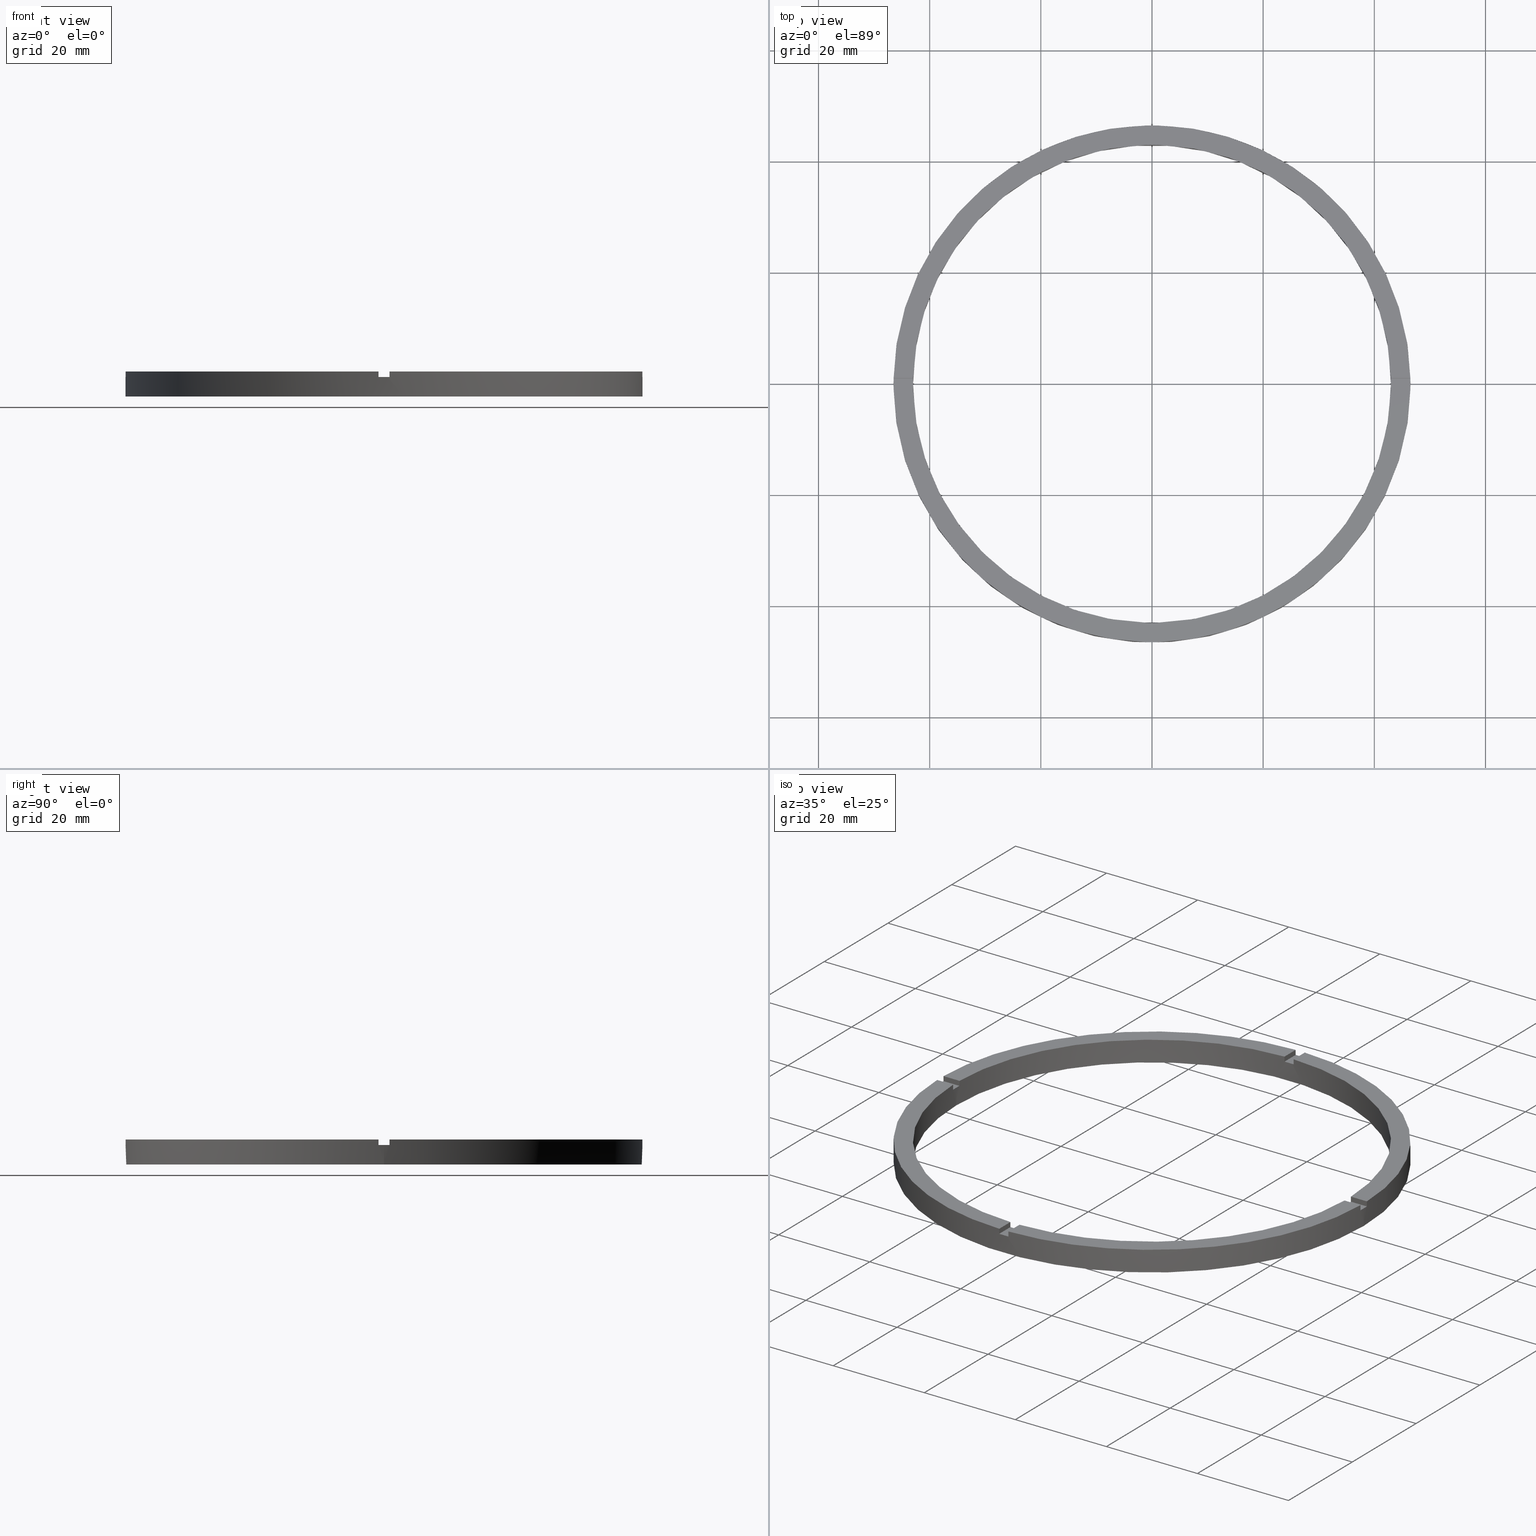
[diagram: canonical four-view strip — front | top / right | iso, engineering-drawing reading convention]
A machine part, canonical four-view strip (front | top / right | iso — engineering-drawing reading convention). The complete STEP part file that produces these views, byte-faithful:
ISO-10303-21;
HEADER;
FILE_DESCRIPTION (( 'STEP AP203' ),
    '1' );
FILE_NAME ('514190.step',
    '2024-12-26T02:46:22',
    ( 'MSI' ),
    ( '' ),
    'SwSTEP 2.0',
    'SolidWorks 2020',
    '' );
FILE_SCHEMA (( 'CONFIG_CONTROL_DESIGN' ));
ENDSEC;

DATA;
#1 = DIRECTION ( 'NONE',  ( -1.301042606982605074E-16, 1.000000000000000000, 0.000000000000000000 ) ) ;
#2 = FACE_OUTER_BOUND ( 'NONE', #13, .T. ) ;
#3 = PRODUCT_DEFINITION_FORMATION_WITH_SPECIFIED_SOURCE ( '�κ�', '', #372, .NOT_KNOWN. ) ;
#4 = EDGE_CURVE ( 'NONE', #716, #425, #410, .T. ) ;
#5 = VECTOR ( 'NONE', #100, 1000.000000000000000 ) ;
#6 = LINE ( 'NONE', #756, #260 ) ;
#7 = DIRECTION ( 'NONE',  ( 1.000000000000000000, 0.000000000000000000, 0.000000000000000000 ) ) ;
#8 = EDGE_LOOP ( 'NONE', ( #530, #523, #490, #443 ) ) ;
#9 = EDGE_LOOP ( 'NONE', ( #237, #162, #688, #698, #454, #176 ) ) ;
#10 = DIRECTION ( 'NONE',  ( -0.000000000000000000, -0.000000000000000000, -1.000000000000000000 ) ) ;
#11 = EDGE_LOOP ( 'NONE', ( #199, #195, #457, #155 ) ) ;
#12 = AXIS2_PLACEMENT_3D ( 'NONE', #37, #369, #257 ) ;
#13 = EDGE_LOOP ( 'NONE', ( #434, #137, #448, #436, #212, #446 ) ) ;
#14 = DIRECTION ( 'NONE',  ( 1.000000000000000000, 0.000000000000000000, 0.000000000000000000 ) ) ;
#15 = APPROVAL_STATUS ( 'not_yet_approved' ) ;
#16 = AXIS2_PLACEMENT_3D ( 'NONE', #395, #108, #149 ) ;
#17 = SHAPE_DEFINITION_REPRESENTATION ( #215, #663 ) ;
#18 = ORIENTED_EDGE ( 'NONE', *, *, #152, .T. ) ;
#19 = PERSON_AND_ORGANIZATION ( #96, #39 ) ;
#20 = PLANE ( 'NONE',  #51 ) ;
#21 = CARTESIAN_POINT ( 'NONE',  ( 46.50000000000000000, 5.694607616035192278E-15, 3.499999999999999556 ) ) ;
#22 = DIRECTION ( 'NONE',  ( 1.000000000000000000, 0.000000000000000000, 0.000000000000000000 ) ) ;
#23 = DIRECTION ( 'NONE',  ( 0.000000000000000000, 0.000000000000000000, 1.000000000000000000 ) ) ;
#24 = LOCAL_TIME ( 10, 46, 22.00000000000000000, #280 ) ;
#25 = PERSON_AND_ORGANIZATION ( #96, #39 ) ;
#26 = APPROVAL_PERSON_ORGANIZATION ( #282, #44, #41 ) ;
#27 = DIRECTION ( 'NONE',  ( 0.000000000000000000, 0.000000000000000000, 1.000000000000000000 ) ) ;
#28 = PERSON_AND_ORGANIZATION ( #96, #39 ) ;
#29 = COORDINATED_UNIVERSAL_TIME_OFFSET ( 8, 0, .AHEAD. ) ;
#30 = AXIS2_PLACEMENT_3D ( 'NONE', #350, #646, #449 ) ;
#31 = DIRECTION ( 'NONE',  ( 1.000000000000000000, 0.000000000000000000, 0.000000000000000000 ) ) ;
#32 = EDGE_CURVE ( 'NONE', #129, #541, #146, .T. ) ;
#33 = APPROVAL_ROLE ( '' ) ;
#34 = CALENDAR_DATE ( 2024, 26, 12 ) ;
#35 = CARTESIAN_POINT ( 'NONE',  ( 0.000000000000000000, 0.000000000000000000, 4.500000000000000000 ) ) ;
#36 = CARTESIAN_POINT ( 'NONE',  ( -1.000000000000157652, -46.48924606831132422, 4.500000000000000000 ) ) ;
#37 = CARTESIAN_POINT ( 'NONE',  ( -36.50000000000018474, -1.000000000000028422, 3.499999999999999556 ) ) ;
#38 = EDGE_CURVE ( 'NONE', #779, #442, #148, .T. ) ;
#39 = ORGANIZATION ( 'δָ��', 'δָ��', '' ) ;
#40 = LOCAL_TIME ( 10, 46, 22.00000000000000000, #29 ) ;
#41 = APPROVAL_ROLE ( '' ) ;
#42 = CARTESIAN_POINT ( 'NONE',  ( -1.000000000000026423, 36.50000000000000000, 4.500000000000000000 ) ) ;
#43 = CARTESIAN_POINT ( 'NONE',  ( 0.000000000000000000, 0.000000000000000000, 3.499999999999999556 ) ) ;
#44 = APPROVAL ( #755, 'δָ��' ) ;
#45 = EDGE_CURVE ( 'NONE', #684, #274, #431, .T. ) ;
#46 = CARTESIAN_POINT ( 'NONE',  ( -1.000000000000026423, 42.98837052040935447, 3.499999999999999556 ) ) ;
#47 = DIRECTION ( 'NONE',  ( 0.000000000000000000, 0.000000000000000000, 1.000000000000000000 ) ) ;
#48 = DIRECTION ( 'NONE',  ( -0.000000000000000000, -0.000000000000000000, -1.000000000000000000 ) ) ;
#49 = DIRECTION ( 'NONE',  ( 1.000000000000000000, 0.000000000000000000, 0.000000000000000000 ) ) ;
#50 =( NAMED_UNIT ( * ) SI_UNIT ( $, .STERADIAN. ) SOLID_ANGLE_UNIT ( ) );
#51 = AXIS2_PLACEMENT_3D ( 'NONE', #655, #296, #1 ) ;
#52 = DIRECTION ( 'NONE',  ( 0.000000000000000000, 0.000000000000000000, 1.000000000000000000 ) ) ;
#53 = LOCAL_TIME ( 10, 46, 22.00000000000000000, #572 ) ;
#54 = CALENDAR_DATE ( 2024, 26, 12 ) ;
#55 = DIRECTION ( 'NONE',  ( -0.000000000000000000, -0.000000000000000000, -1.000000000000000000 ) ) ;
#56 = AXIS2_PLACEMENT_3D ( 'NONE', #66, #400, #482 ) ;
#57 = APPROVAL_PERSON_ORGANIZATION ( #573, #209, #700 ) ;
#58 = CALENDAR_DATE ( 2024, 26, 12 ) ;
#59 = AXIS2_PLACEMENT_3D ( 'NONE', #471, #203, #582 ) ;
#60 = ADVANCED_FACE ( 'NONE', ( #421 ), #20, .F. ) ;
#61 = DIRECTION ( 'NONE',  ( 0.000000000000000000, -0.000000000000000000, 1.000000000000000000 ) ) ;
#62 = FACE_OUTER_BOUND ( 'NONE', #477, .T. ) ;
#63 = EDGE_CURVE ( 'NONE', #521, #261, #174, .T. ) ;
#64 = CIRCLE ( 'NONE', #672, 46.50000000000000000 ) ;
#65 = FACE_OUTER_BOUND ( 'NONE', #465, .T. ) ;
#66 = CARTESIAN_POINT ( 'NONE',  ( 0.000000000000000000, 0.000000000000000000, 3.499999999999999556 ) ) ;
#67 = LINE ( 'NONE', #308, #323 ) ;
#68 = AXIS2_PLACEMENT_3D ( 'NONE', #83, #699, #27 ) ;
#69 = LINE ( 'NONE', #86, #71 ) ;
#70 = VECTOR ( 'NONE', #746, 1000.000000000000000 ) ;
#71 = VECTOR ( 'NONE', #75, 1000.000000000000000 ) ;
#72 = FACE_OUTER_BOUND ( 'NONE', #656, .T. ) ;
#73 = VECTOR ( 'NONE', #106, 1000.000000000000000 ) ;
#74 = CARTESIAN_POINT ( 'NONE',  ( 43.00000000000000000, 5.265981236333618470E-15, 4.500000000000000000 ) ) ;
#75 = DIRECTION ( 'NONE',  ( 1.000000000000000000, 1.951563910473907735E-16, -0.000000000000000000 ) ) ;
#76 = FACE_OUTER_BOUND ( 'NONE', #181, .T. ) ;
#77 = LINE ( 'NONE', #124, #81 ) ;
#78 = CARTESIAN_POINT ( 'NONE',  ( 0.000000000000000000, 0.000000000000000000, 3.499999999999999556 ) ) ;
#79 = CARTESIAN_POINT ( 'NONE',  ( -46.50000000000000000, 0.000000000000000000, 4.500000000000000000 ) ) ;
#80 = LINE ( 'NONE', #776, #585 ) ;
#81 = VECTOR ( 'NONE', #55, 1000.000000000000000 ) ;
#82 = AXIS2_PLACEMENT_3D ( 'NONE', #315, #741, #362 ) ;
#83 = CARTESIAN_POINT ( 'NONE',  ( -1.000000000000026423, 36.50000000000000000, 3.499999999999999556 ) ) ;
#84 = LINE ( 'NONE', #284, #584 ) ;
#85 = LINE ( 'NONE', #478, #87 ) ;
#86 = CARTESIAN_POINT ( 'NONE',  ( -36.50000000000018474, -1.000000000000028422, 3.499999999999999556 ) ) ;
#87 = VECTOR ( 'NONE', #552, 1000.000000000000000 ) ;
#88 = EDGE_CURVE ( 'NONE', #177, #190, #150, .T. ) ;
#89 = FACE_OUTER_BOUND ( 'NONE', #180, .T. ) ;
#90 = DIRECTION ( 'NONE',  ( 0.000000000000000000, 0.000000000000000000, 1.000000000000000000 ) ) ;
#91 = EDGE_CURVE ( 'NONE', #671, #442, #163, .T. ) ;
#92 = PERSON_AND_ORGANIZATION_ROLE ( 'creator' ) ;
#93 = APPROVAL ( #744, 'δָ��' ) ;
#94 = DIRECTION ( 'NONE',  ( 0.000000000000000000, 0.000000000000000000, 1.000000000000000000 ) ) ;
#95 = EDGE_CURVE ( 'NONE', #164, #142, #682, .T. ) ;
#96 = PERSON ( 'δָ��', 'δָ��', 'δָ��', ('δָ��'), ('δָ��'), ('δָ��') ) ;
#97 = DIRECTION ( 'NONE',  ( -0.000000000000000000, 0.000000000000000000, 1.000000000000000000 ) ) ;
#98 = EDGE_CURVE ( 'NONE', #536, #723, #694, .T. ) ;
#99 = CARTESIAN_POINT ( 'NONE',  ( 0.9999999999999735767, 46.48924606831132422, 3.499999999999999556 ) ) ;
#100 = DIRECTION ( 'NONE',  ( -0.000000000000000000, -1.000000000000000000, -0.000000000000000000 ) ) ;
#101 = DIRECTION ( 'NONE',  ( 1.000000000000000000, 0.000000000000000000, 0.000000000000000000 ) ) ;
#102 = ADVANCED_FACE ( 'NONE', ( #459 ), #227, .F. ) ;
#103 = DIRECTION ( 'NONE',  ( -1.000000000000000000, 0.000000000000000000, 0.000000000000000000 ) ) ;
#104 = DIRECTION ( 'NONE',  ( 1.000000000000000000, 0.000000000000000000, -0.000000000000000000 ) ) ;
#105 = EDGE_CURVE ( 'NONE', #245, #479, #714, .T. ) ;
#106 = DIRECTION ( 'NONE',  ( 1.301042606982605074E-16, -1.000000000000000000, 0.000000000000000000 ) ) ;
#107 = DIRECTION ( 'NONE',  ( 1.000000000000000000, 0.000000000000000000, 0.000000000000000000 ) ) ;
#108 = DIRECTION ( 'NONE',  ( -0.000000000000000000, -0.000000000000000000, -1.000000000000000000 ) ) ;
#109 = DIRECTION ( 'NONE',  ( 0.000000000000000000, 0.000000000000000000, 1.000000000000000000 ) ) ;
#110 = DIRECTION ( 'NONE',  ( 0.000000000000000000, 0.000000000000000000, 1.000000000000000000 ) ) ;
#111 = AXIS2_PLACEMENT_3D ( 'NONE', #220, #265, #103 ) ;
#112 = AXIS2_PLACEMENT_3D ( 'NONE', #629, #745, #632 ) ;
#113 = CIRCLE ( 'NONE', #566, 46.50000000000000000 ) ;
#114 = ORIENTED_EDGE ( 'NONE', *, *, #737, .F. ) ;
#115 = CARTESIAN_POINT ( 'NONE',  ( 0.000000000000000000, 0.000000000000000000, 3.499999999999999556 ) ) ;
#116 = ORIENTED_EDGE ( 'NONE', *, *, #348, .F. ) ;
#117 = CIRCLE ( 'NONE', #59, 43.00000000000000000 ) ;
#118 = LINE ( 'NONE', #42, #5 ) ;
#119 = EDGE_CURVE ( 'NONE', #214, #261, #445, .T. ) ;
#120 = UNCERTAINTY_MEASURE_WITH_UNIT (LENGTH_MEASURE( 1.000000000000000082E-05 ), #691, 'distance_accuracy_value', 'NONE');
#121 = CC_DESIGN_DATE_AND_TIME_ASSIGNMENT ( #304, #732, ( #381 ) ) ;
#122 = EDGE_CURVE ( 'NONE', #458, #536, #184, .T. ) ;
#123 = ADVANCED_FACE ( 'NONE', ( #179 ), #196, .F. ) ;
#124 = CARTESIAN_POINT ( 'NONE',  ( 0.9999999999998419042, -42.98837052040935447, 4.500000000000000000 ) ) ;
#125 = DIRECTION ( 'NONE',  ( 1.000000000000000000, 0.000000000000000000, -0.000000000000000000 ) ) ;
#126 = CARTESIAN_POINT ( 'NONE',  ( -43.00000000000000000, 0.000000000000000000, 0.000000000000000000 ) ) ;
#127 = DIRECTION ( 'NONE',  ( -1.301042606982605074E-16, 1.000000000000000000, -0.000000000000000000 ) ) ;
#128 = CARTESIAN_POINT ( 'NONE',  ( 0.000000000000000000, 0.000000000000000000, 3.499999999999999556 ) ) ;
#129 = VERTEX_POINT ( 'NONE', #669 ) ;
#130 = DIRECTION ( 'NONE',  ( 1.000000000000000000, 0.000000000000000000, 0.000000000000000000 ) ) ;
#131 = DIRECTION ( 'NONE',  ( 1.000000000000000000, 0.000000000000000000, 0.000000000000000000 ) ) ;
#132 = DIRECTION ( 'NONE',  ( 1.000000000000000000, 0.000000000000000000, 0.000000000000000000 ) ) ;
#133 = DIRECTION ( 'NONE',  ( 0.000000000000000000, 0.000000000000000000, 1.000000000000000000 ) ) ;
#134 = ORIENTED_EDGE ( 'NONE', *, *, #567, .T. ) ;
#135 = ORIENTED_EDGE ( 'NONE', *, *, #152, .F. ) ;
#136 = DIRECTION ( 'NONE',  ( 1.000000000000000000, 0.000000000000000000, 0.000000000000000000 ) ) ;
#137 = ORIENTED_EDGE ( 'NONE', *, *, #453, .T. ) ;
#138 = DIRECTION ( 'NONE',  ( 0.000000000000000000, 0.000000000000000000, 1.000000000000000000 ) ) ;
#139 = EDGE_CURVE ( 'NONE', #267, #402, #456, .T. ) ;
#140 = ORIENTED_EDGE ( 'NONE', *, *, #634, .F. ) ;
#141 = PLANE ( 'NONE',  #263 ) ;
#142 = VERTEX_POINT ( 'NONE', #363 ) ;
#143 = CARTESIAN_POINT ( 'NONE',  ( 0.000000000000000000, 0.000000000000000000, 3.499999999999999556 ) ) ;
#144 = ORIENTED_EDGE ( 'NONE', *, *, #32, .F. ) ;
#145 = EDGE_CURVE ( 'NONE', #479, #262, #189, .T. ) ;
#146 = LINE ( 'NONE', #710, #678 ) ;
#147 = ADVANCED_FACE ( 'NONE', ( #616 ), #316, .F. ) ;
#148 = LINE ( 'NONE', #648, #414 ) ;
#149 = DIRECTION ( 'NONE',  ( -1.000000000000000000, 0.000000000000000000, 0.000000000000000000 ) ) ;
#150 = LINE ( 'NONE', #353, #156 ) ;
#151 = CC_DESIGN_PERSON_AND_ORGANIZATION_ASSIGNMENT ( #19, #394, ( #3 ) ) ;
#152 = EDGE_CURVE ( 'NONE', #723, #693, #606, .T. ) ;
#153 = EDGE_CURVE ( 'NONE', #469, #720, #84, .T. ) ;
#154 = CARTESIAN_POINT ( 'NONE',  ( -43.00000000000000000, 0.000000000000000000, 4.500000000000000000 ) ) ;
#155 = ORIENTED_EDGE ( 'NONE', *, *, #486, .T. ) ;
#156 = VECTOR ( 'NONE', #650, 1000.000000000000000 ) ;
#157 = DIRECTION ( 'NONE',  ( -1.000000000000000000, -1.951563910473907735E-16, 0.000000000000000000 ) ) ;
#158 = ORIENTED_EDGE ( 'NONE', *, *, #681, .F. ) ;
#159 = ORIENTED_EDGE ( 'NONE', *, *, #38, .F. ) ;
#160 = DIRECTION ( 'NONE',  ( 1.000000000000000000, 0.000000000000000000, -0.000000000000000000 ) ) ;
#161 = ORIENTED_EDGE ( 'NONE', *, *, #681, .T. ) ;
#162 = ORIENTED_EDGE ( 'NONE', *, *, #95, .T. ) ;
#163 = CIRCLE ( 'NONE', #665, 46.50000000000000000 ) ;
#164 = VERTEX_POINT ( 'NONE', #440 ) ;
#165 = ORIENTED_EDGE ( 'NONE', *, *, #63, .F. ) ;
#166 = PLANE ( 'NONE',  #386 ) ;
#167 = AXIS2_PLACEMENT_3D ( 'NONE', #186, #275, #22 ) ;
#168 = ORIENTED_EDGE ( 'NONE', *, *, #634, .T. ) ;
#169 = ORIENTED_EDGE ( 'NONE', *, *, #388, .F. ) ;
#170 = ORIENTED_EDGE ( 'NONE', *, *, #398, .F. ) ;
#171 = ORIENTED_EDGE ( 'NONE', *, *, #564, .F. ) ;
#172 = VERTEX_POINT ( 'NONE', #360 ) ;
#173 = VERTEX_POINT ( 'NONE', #217 ) ;
#174 = LINE ( 'NONE', #543, #680 ) ;
#175 = ORIENTED_EDGE ( 'NONE', *, *, #272, .T. ) ;
#176 = ORIENTED_EDGE ( 'NONE', *, *, #380, .T. ) ;
#177 = VERTEX_POINT ( 'NONE', #21 ) ;
#178 = ORIENTED_EDGE ( 'NONE', *, *, #303, .F. ) ;
#179 = FACE_OUTER_BOUND ( 'NONE', #213, .T. ) ;
#180 = EDGE_LOOP ( 'NONE', ( #417, #670, #730, #497 ) ) ;
#181 = EDGE_LOOP ( 'NONE', ( #751, #424, #513, #439 ) ) ;
#182 = CARTESIAN_POINT ( 'NONE',  ( 0.000000000000000000, 0.000000000000000000, 0.000000000000000000 ) ) ;
#183 = EDGE_CURVE ( 'NONE', #461, #172, #334, .T. ) ;
#184 = CIRCLE ( 'NONE', #167, 43.00000000000000000 ) ;
#185 = ORIENTED_EDGE ( 'NONE', *, *, #708, .F. ) ;
#186 = CARTESIAN_POINT ( 'NONE',  ( 0.000000000000000000, 0.000000000000000000, 3.499999999999999556 ) ) ;
#187 = ORIENTED_EDGE ( 'NONE', *, *, #183, .T. ) ;
#188 = DIRECTION ( 'NONE',  ( 1.000000000000000000, 0.000000000000000000, 0.000000000000000000 ) ) ;
#189 = LINE ( 'NONE', #328, #605 ) ;
#190 = VERTEX_POINT ( 'NONE', #522 ) ;
#191 = AXIS2_PLACEMENT_3D ( 'NONE', #128, #463, #104 ) ;
#192 = ORIENTED_EDGE ( 'NONE', *, *, #288, .F. ) ;
#193 = CARTESIAN_POINT ( 'NONE',  ( -1.000000000000158096, -42.98837052040934736, 4.500000000000000000 ) ) ;
#194 = EDGE_CURVE ( 'NONE', #684, #521, #608, .T. ) ;
#195 = ORIENTED_EDGE ( 'NONE', *, *, #277, .F. ) ;
#196 = PLANE ( 'NONE',  #12 ) ;
#197 = ORIENTED_EDGE ( 'NONE', *, *, #98, .T. ) ;
#198 = CARTESIAN_POINT ( 'NONE',  ( 42.98837052040934736, -1.000000000000156097, 4.500000000000000000 ) ) ;
#199 = ORIENTED_EDGE ( 'NONE', *, *, #240, .F. ) ;
#200 = CARTESIAN_POINT ( 'NONE',  ( 0.000000000000000000, 0.000000000000000000, 0.000000000000000000 ) ) ;
#201 = ORIENTED_EDGE ( 'NONE', *, *, #426, .T. ) ;
#202 = VERTEX_POINT ( 'NONE', #625 ) ;
#203 = DIRECTION ( 'NONE',  ( 0.000000000000000000, 0.000000000000000000, 1.000000000000000000 ) ) ;
#204 = ADVANCED_FACE ( 'NONE', ( #591 ), #141, .T. ) ;
#205 = ORIENTED_EDGE ( 'NONE', *, *, #653, .T. ) ;
#206 = ORIENTED_EDGE ( 'NONE', *, *, #480, .T. ) ;
#207 = CARTESIAN_POINT ( 'NONE',  ( 42.98837052040935447, 0.9999999999998439026, 4.500000000000000000 ) ) ;
#208 = ORIENTED_EDGE ( 'NONE', *, *, #767, .T. ) ;
#209 = APPROVAL ( #15, 'δָ��' ) ;
#210 = DIRECTION ( 'NONE',  ( 0.000000000000000000, 0.000000000000000000, 1.000000000000000000 ) ) ;
#211 = CARTESIAN_POINT ( 'NONE',  ( 0.000000000000000000, 0.000000000000000000, 4.500000000000000000 ) ) ;
#212 = ORIENTED_EDGE ( 'NONE', *, *, #122, .F. ) ;
#213 = EDGE_LOOP ( 'NONE', ( #266, #468, #178, #114 ) ) ;
#214 = VERTEX_POINT ( 'NONE', #430 ) ;
#215 = PRODUCT_DEFINITION_SHAPE ( 'NONE', 'NONE',  #381 ) ;
#216 = ORIENTED_EDGE ( 'NONE', *, *, #501, .F. ) ;
#217 = CARTESIAN_POINT ( 'NONE',  ( 46.48924606831132422, -1.000000000000155875, 4.500000000000000000 ) ) ;
#218 = CARTESIAN_POINT ( 'NONE',  ( -1.000000000000158096, -42.98837052040934736, 3.499999999999999556 ) ) ;
#219 = CC_DESIGN_APPROVAL ( #93, ( #381 ) ) ;
#220 = CARTESIAN_POINT ( 'NONE',  ( 0.000000000000000000, 0.000000000000000000, 4.500000000000000000 ) ) ;
#221 = ADVANCED_FACE ( 'NONE', ( #601 ), #339, .T. ) ;
#222 = ORIENTED_EDGE ( 'NONE', *, *, #392, .T. ) ;
#223 = DIRECTION ( 'NONE',  ( 0.000000000000000000, 0.000000000000000000, 1.000000000000000000 ) ) ;
#224 = CYLINDRICAL_SURFACE ( 'NONE', #16, 46.50000000000000000 ) ;
#225 = VECTOR ( 'NONE', #367, 1000.000000000000000 ) ;
#226 = CIRCLE ( 'NONE', #620, 43.00000000000000000 ) ;
#227 = PLANE ( 'NONE',  #722 ) ;
#228 = VERTEX_POINT ( 'NONE', #539 ) ;
#229 = CIRCLE ( 'NONE', #412, 43.00000000000000000 ) ;
#230 = ADVANCED_FACE ( 'NONE', ( #65 ), #563, .F. ) ;
#231 = EDGE_CURVE ( 'NONE', #720, #262, #77, .T. ) ;
#232 = ORIENTED_EDGE ( 'NONE', *, *, #407, .F. ) ;
#233 = LINE ( 'NONE', #529, #763 ) ;
#234 = VECTOR ( 'NONE', #287, 1000.000000000000000 ) ;
#235 = CARTESIAN_POINT ( 'NONE',  ( 0.000000000000000000, 0.000000000000000000, 4.500000000000000000 ) ) ;
#236 = AXIS2_PLACEMENT_3D ( 'NONE', #626, #416, #743 ) ;
#237 = ORIENTED_EDGE ( 'NONE', *, *, #619, .T. ) ;
#238 = CARTESIAN_POINT ( 'NONE',  ( 46.48924606831132422, -1.000000000000155875, 4.500000000000000000 ) ) ;
#239 = VECTOR ( 'NONE', #110, 1000.000000000000000 ) ;
#240 = EDGE_CURVE ( 'NONE', #370, #173, #80, .T. ) ;
#241 = ORIENTED_EDGE ( 'NONE', *, *, #708, .T. ) ;
#242 = VECTOR ( 'NONE', #133, 1000.000000000000000 ) ;
#243 = ORIENTED_EDGE ( 'NONE', *, *, #314, .F. ) ;
#244 = LINE ( 'NONE', #269, #498 ) ;
#245 = VERTEX_POINT ( 'NONE', #413 ) ;
#246 = CARTESIAN_POINT ( 'NONE',  ( 0.000000000000000000, 0.000000000000000000, 3.499999999999999556 ) ) ;
#247 = VECTOR ( 'NONE', #157, 1000.000000000000000 ) ;
#248 = CARTESIAN_POINT ( 'NONE',  ( 0.000000000000000000, 0.000000000000000000, 3.499999999999999556 ) ) ;
#249 = ORIENTED_EDGE ( 'NONE', *, *, #614, .T. ) ;
#250 = LINE ( 'NONE', #757, #234 ) ;
#251 = FACE_OUTER_BOUND ( 'NONE', #9, .T. ) ;
#252 = CIRCLE ( 'NONE', #331, 43.00000000000000000 ) ;
#253 = CC_DESIGN_APPROVAL ( #44, ( #351 ) ) ;
#254 = EDGE_LOOP ( 'NONE', ( #697, #197, #192, #768, #485, #165, #429, #761, #502, #766, #432, #243 ) ) ;
#255 = CIRCLE ( 'NONE', #361, 43.00000000000000000 ) ;
#256 = AXIS2_PLACEMENT_3D ( 'NONE', #43, #592, #131 ) ;
#257 = DIRECTION ( 'NONE',  ( 1.000000000000000000, 1.951563910473907735E-16, 0.000000000000000000 ) ) ;
#258 = PLANE ( 'NONE',  #651 ) ;
#259 = ORIENTED_EDGE ( 'NONE', *, *, #91, .T. ) ;
#260 = VECTOR ( 'NONE', #285, 1000.000000000000000 ) ;
#261 = VERTEX_POINT ( 'NONE', #738 ) ;
#262 = VERTEX_POINT ( 'NONE', #623 ) ;
#263 = AXIS2_PLACEMENT_3D ( 'NONE', #365, #675, #136 ) ;
#264 = EDGE_LOOP ( 'NONE', ( #470, #735, #472, #168, #378, #206, #116, #134, #527, #208, #201, #135 ) ) ;
#265 = DIRECTION ( 'NONE',  ( -0.000000000000000000, -0.000000000000000000, -1.000000000000000000 ) ) ;
#266 = ORIENTED_EDGE ( 'NONE', *, *, #194, .T. ) ;
#267 = VERTEX_POINT ( 'NONE', #571 ) ;
#268 = AXIS2_PLACEMENT_3D ( 'NONE', #618, #423, #556 ) ;
#269 = CARTESIAN_POINT ( 'NONE',  ( -46.48924606831132422, 0.9999999999999696909, 4.500000000000000000 ) ) ;
#270 = DIRECTION ( 'NONE',  ( 1.000000000000000000, 0.000000000000000000, 0.000000000000000000 ) ) ;
#271 = SECURITY_CLASSIFICATION_LEVEL ( 'unclassified' ) ;
#272 = EDGE_CURVE ( 'NONE', #716, #671, #322, .T. ) ;
#273 = CARTESIAN_POINT ( 'NONE',  ( 36.49999999999999289, 0.9999999999998434586, 4.500000000000000000 ) ) ;
#274 = VERTEX_POINT ( 'NONE', #36 ) ;
#275 = DIRECTION ( 'NONE',  ( 0.000000000000000000, 0.000000000000000000, 1.000000000000000000 ) ) ;
#276 = DIRECTION ( 'NONE',  ( -1.000000000000000000, 0.000000000000000000, 0.000000000000000000 ) ) ;
#277 = EDGE_CURVE ( 'NONE', #720, #370, #596, .T. ) ;
#278 = CARTESIAN_POINT ( 'NONE',  ( 0.000000000000000000, 0.000000000000000000, 4.500000000000000000 ) ) ;
#279 = DIRECTION ( 'NONE',  ( 0.000000000000000000, 0.000000000000000000, 1.000000000000000000 ) ) ;
#280 = COORDINATED_UNIVERSAL_TIME_OFFSET ( 8, 0, .AHEAD. ) ;
#281 = PLANE ( 'NONE',  #112 ) ;
#282 = PERSON_AND_ORGANIZATION ( #96, #39 ) ;
#283 = ORIENTED_EDGE ( 'NONE', *, *, #352, .T. ) ;
#284 = CARTESIAN_POINT ( 'NONE',  ( 0.9999999999998411271, -36.50000000000017764, 4.500000000000000000 ) ) ;
#285 = DIRECTION ( 'NONE',  ( -0.000000000000000000, -0.000000000000000000, -1.000000000000000000 ) ) ;
#286 = PERSON_AND_ORGANIZATION ( #96, #39 ) ;
#287 = DIRECTION ( 'NONE',  ( -0.000000000000000000, -0.000000000000000000, -1.000000000000000000 ) ) ;
#288 = EDGE_CURVE ( 'NONE', #693, #723, #320, .T. ) ;
#289 = CARTESIAN_POINT ( 'NONE',  ( 43.00000000000000000, 5.265981236333618470E-15, 3.499999999999999556 ) ) ;
#290 = AXIS2_PLACEMENT_3D ( 'NONE', #200, #374, #533 ) ;
#291 = CALENDAR_DATE ( 2024, 26, 12 ) ;
#292 = ADVANCED_FACE ( 'NONE', ( #336 ), #258, .T. ) ;
#293 = DESIGN_CONTEXT ( 'detailed design', #570, 'design' ) ;
#294 = CARTESIAN_POINT ( 'NONE',  ( 0.9999999999999735767, 36.50000000000000000, 3.499999999999999556 ) ) ;
#295 = DIRECTION ( 'NONE',  ( 0.000000000000000000, 0.000000000000000000, 1.000000000000000000 ) ) ;
#296 = DIRECTION ( 'NONE',  ( 1.000000000000000000, 1.301042606982605074E-16, 0.000000000000000000 ) ) ;
#297 = PLANE ( 'NONE',  #56 ) ;
#298 = EDGE_CURVE ( 'NONE', #172, #274, #67, .T. ) ;
#299 = DIRECTION ( 'NONE',  ( -1.000000000000000000, -6.505213034913025371E-17, -0.000000000000000000 ) ) ;
#300 = AXIS2_PLACEMENT_3D ( 'NONE', #736, #23, #31 ) ;
#301 = LOCAL_TIME ( 10, 46, 22.00000000000000000, #575 ) ;
#302 = PERSON_AND_ORGANIZATION ( #96, #39 ) ;
#303 = EDGE_CURVE ( 'NONE', #142, #261, #69, .T. ) ;
#304 = DATE_AND_TIME ( #54, #53 ) ;
#305 = APPROVAL_DATE_TIME ( #561, #93 ) ;
#306 = CARTESIAN_POINT ( 'NONE',  ( 0.000000000000000000, 0.000000000000000000, 3.499999999999999556 ) ) ;
#307 = DATE_AND_TIME ( #58, #301 ) ;
#308 = CARTESIAN_POINT ( 'NONE',  ( -1.000000000000158984, -36.50000000000017764, 4.500000000000000000 ) ) ;
#309 = EDGE_CURVE ( 'NONE', #391, #177, #609, .T. ) ;
#310 = APPLICATION_PROTOCOL_DEFINITION ( 'international standard', 'config_control_design', 1994, #428 ) ;
#311 = DIRECTION ( 'NONE',  ( 1.000000000000000000, 6.505213034913025371E-17, 0.000000000000000000 ) ) ;
#312 = DIRECTION ( 'NONE',  ( 1.301042606982605074E-16, -1.000000000000000000, 0.000000000000000000 ) ) ;
#313 = VECTOR ( 'NONE', #780, 1000.000000000000000 ) ;
#314 = EDGE_CURVE ( 'NONE', #458, #370, #341, .T. ) ;
#315 = CARTESIAN_POINT ( 'NONE',  ( 0.000000000000000000, 0.000000000000000000, 0.000000000000000000 ) ) ;
#316 = CYLINDRICAL_SURFACE ( 'NONE', #111, 43.00000000000000000 ) ;
#317 = LINE ( 'NONE', #565, #581 ) ;
#318 = LINE ( 'NONE', #652, #340 ) ;
#319 = LINE ( 'NONE', #467, #598 ) ;
#320 = CIRCLE ( 'NONE', #268, 43.00000000000000000 ) ;
#321 = ADVANCED_FACE ( 'NONE', ( #72 ), #622, .F. ) ;
#322 = LINE ( 'NONE', #628, #70 ) ;
#323 = VECTOR ( 'NONE', #312, 1000.000000000000000 ) ;
#324 = PLANE ( 'NONE',  #397 ) ;
#325 = VECTOR ( 'NONE', #10, 1000.000000000000000 ) ;
#326 = CARTESIAN_POINT ( 'NONE',  ( 0.9999999999998419042, -42.98837052040935447, 4.500000000000000000 ) ) ;
#327 = LINE ( 'NONE', #154, #600 ) ;
#328 = CARTESIAN_POINT ( 'NONE',  ( 0.9999999999998411271, -36.50000000000017764, 3.499999999999999556 ) ) ;
#329 = LINE ( 'NONE', #519, #73 ) ;
#330 = CARTESIAN_POINT ( 'NONE',  ( -1.000000000000026423, 36.50000000000000000, 3.499999999999999556 ) ) ;
#331 = AXIS2_PLACEMENT_3D ( 'NONE', #345, #97, #130 ) ;
#332 = CARTESIAN_POINT ( 'NONE',  ( -46.48924606831132422, 0.9999999999999696909, 4.500000000000000000 ) ) ;
#333 = CIRCLE ( 'NONE', #558, 46.50000000000000000 ) ;
#334 = LINE ( 'NONE', #193, #594 ) ;
#335 = DIRECTION ( 'NONE',  ( 0.000000000000000000, 0.000000000000000000, 1.000000000000000000 ) ) ;
#336 = FACE_OUTER_BOUND ( 'NONE', #499, .T. ) ;
#337 = VECTOR ( 'NONE', #569, 1000.000000000000000 ) ;
#338 = DIRECTION ( 'NONE',  ( 0.000000000000000000, 0.000000000000000000, 1.000000000000000000 ) ) ;
#339 = CYLINDRICAL_SURFACE ( 'NONE', #627, 46.50000000000000000 ) ;
#340 = VECTOR ( 'NONE', #725, 1000.000000000000000 ) ;
#341 = LINE ( 'NONE', #198, #337 ) ;
#342 = FACE_OUTER_BOUND ( 'NONE', #11, .T. ) ;
#343 = AXIS2_PLACEMENT_3D ( 'NONE', #143, #223, #590 ) ;
#344 = DIRECTION ( 'NONE',  ( 0.000000000000000000, 0.000000000000000000, 1.000000000000000000 ) ) ;
#345 = CARTESIAN_POINT ( 'NONE',  ( 0.000000000000000000, 0.000000000000000000, 3.499999999999999556 ) ) ;
#346 = CARTESIAN_POINT ( 'NONE',  ( -42.98837052040935447, 0.9999999999999703570, 4.500000000000000000 ) ) ;
#347 = ADVANCED_FACE ( 'NONE', ( #603 ), #324, .F. ) ;
#348 = EDGE_CURVE ( 'NONE', #228, #474, #318, .T. ) ;
#349 = DIRECTION ( 'NONE',  ( 0.000000000000000000, 0.000000000000000000, 1.000000000000000000 ) ) ;
#350 = CARTESIAN_POINT ( 'NONE',  ( 0.000000000000000000, 0.000000000000000000, 4.500000000000000000 ) ) ;
#351 = SECURITY_CLASSIFICATION ( '', '', #271 ) ;
#352 = EDGE_CURVE ( 'NONE', #164, #706, #615, .T. ) ;
#353 = CARTESIAN_POINT ( 'NONE',  ( 46.50000000000000000, 5.694607616035192278E-15, 4.500000000000000000 ) ) ;
#354 = CARTESIAN_POINT ( 'NONE',  ( -36.50000000000018474, 0.9999999999999715783, 4.500000000000000000 ) ) ;
#355 = DIRECTION ( 'NONE',  ( -0.000000000000000000, -0.000000000000000000, -1.000000000000000000 ) ) ;
#356 = CARTESIAN_POINT ( 'NONE',  ( 0.000000000000000000, 0.000000000000000000, 4.500000000000000000 ) ) ;
#357 = DIRECTION ( 'NONE',  ( 0.000000000000000000, 0.000000000000000000, 1.000000000000000000 ) ) ;
#358 = DIRECTION ( 'NONE',  ( 1.000000000000000000, 1.951563910473907735E-16, -0.000000000000000000 ) ) ;
#359 = DIRECTION ( 'NONE',  ( 0.000000000000000000, 0.000000000000000000, 1.000000000000000000 ) ) ;
#360 = CARTESIAN_POINT ( 'NONE',  ( -1.000000000000158096, -42.98837052040934736, 4.500000000000000000 ) ) ;
#361 = AXIS2_PLACEMENT_3D ( 'NONE', #278, #335, #778 ) ;
#362 = DIRECTION ( 'NONE',  ( 1.000000000000000000, 0.000000000000000000, 0.000000000000000000 ) ) ;
#363 = CARTESIAN_POINT ( 'NONE',  ( -46.48924606831132422, -1.000000000000030420, 3.499999999999999556 ) ) ;
#364 = ORIENTED_EDGE ( 'NONE', *, *, #45, .F. ) ;
#365 = CARTESIAN_POINT ( 'NONE',  ( 0.000000000000000000, 0.000000000000000000, 3.499999999999999556 ) ) ;
#366 = ORIENTED_EDGE ( 'NONE', *, *, #348, .T. ) ;
#367 = DIRECTION ( 'NONE',  ( -0.000000000000000000, -1.000000000000000000, -0.000000000000000000 ) ) ;
#368 = LINE ( 'NONE', #273, #644 ) ;
#369 = DIRECTION ( 'NONE',  ( 1.951563910473907735E-16, -1.000000000000000000, 0.000000000000000000 ) ) ;
#370 = VERTEX_POINT ( 'NONE', #405 ) ;
#371 = CC_DESIGN_PERSON_AND_ORGANIZATION_ASSIGNMENT ( #302, #92, ( #381 ) ) ;
#372 = PRODUCT ( '514190', '514190', '', ( #514 ) ) ;
#373 = AXIS2_PLACEMENT_3D ( 'NONE', #115, #621, #510 ) ;
#374 = DIRECTION ( 'NONE',  ( 0.000000000000000000, 0.000000000000000000, 1.000000000000000000 ) ) ;
#375 = DIRECTION ( 'NONE',  ( -0.000000000000000000, -0.000000000000000000, -1.000000000000000000 ) ) ;
#376 = PLANE ( 'NONE',  #343 ) ;
#377 = CARTESIAN_POINT ( 'NONE',  ( 0.9999999999999735767, 46.48924606831132422, 4.500000000000000000 ) ) ;
#378 = ORIENTED_EDGE ( 'NONE', *, *, #4, .F. ) ;
#379 = DIRECTION ( 'NONE',  ( -1.000000000000000000, 0.000000000000000000, 0.000000000000000000 ) ) ;
#380 = EDGE_CURVE ( 'NONE', #742, #202, #317, .T. ) ;
#381 = PRODUCT_DEFINITION ( 'δ֪', '', #3, #293 ) ;
#382 = ADVANCED_FACE ( 'NONE', ( #76 ), #166, .T. ) ;
#383 = CARTESIAN_POINT ( 'NONE',  ( 0.9999999999998423483, -46.48924606831132422, 3.499999999999999556 ) ) ;
#384 = CARTESIAN_POINT ( 'NONE',  ( 0.000000000000000000, 0.000000000000000000, 0.000000000000000000 ) ) ;
#385 = CARTESIAN_POINT ( 'NONE',  ( 46.48924606831132422, -1.000000000000155875, 3.499999999999999556 ) ) ;
#386 = AXIS2_PLACEMENT_3D ( 'NONE', #487, #52, #679 ) ;
#387 = DIRECTION ( 'NONE',  ( -0.000000000000000000, -0.000000000000000000, -1.000000000000000000 ) ) ;
#388 = EDGE_CURVE ( 'NONE', #706, #190, #333, .T. ) ;
#389 = CARTESIAN_POINT ( 'NONE',  ( 0.000000000000000000, 0.000000000000000000, 3.499999999999999556 ) ) ;
#390 = ADVANCED_FACE ( 'NONE', ( #62 ), #537, .T. ) ;
#391 = VERTEX_POINT ( 'NONE', #385 ) ;
#392 = EDGE_CURVE ( 'NONE', #686, #541, #319, .T. ) ;
#393 = CARTESIAN_POINT ( 'NONE',  ( 0.9999999999999735767, 42.98837052040935447, 4.500000000000000000 ) ) ;
#394 = PERSON_AND_ORGANIZATION_ROLE ( 'creator' ) ;
#395 = CARTESIAN_POINT ( 'NONE',  ( 0.000000000000000000, 0.000000000000000000, 4.500000000000000000 ) ) ;
#396 = DIRECTION ( 'NONE',  ( 1.000000000000000000, 6.505213034913025371E-17, 0.000000000000000000 ) ) ;
#397 = AXIS2_PLACEMENT_3D ( 'NONE', #503, #399, #657 ) ;
#398 = EDGE_CURVE ( 'NONE', #425, #402, #612, .T. ) ;
#399 = DIRECTION ( 'NONE',  ( -1.951563910473907735E-16, 1.000000000000000000, 0.000000000000000000 ) ) ;
#400 = DIRECTION ( 'NONE',  ( 0.000000000000000000, 0.000000000000000000, 1.000000000000000000 ) ) ;
#401 = DIRECTION ( 'NONE',  ( -0.000000000000000000, -0.000000000000000000, -1.000000000000000000 ) ) ;
#402 = VERTEX_POINT ( 'NONE', #435 ) ;
#403 = EDGE_LOOP ( 'NONE', ( #422, #222, #144, #509 ) ) ;
#404 = DIRECTION ( 'NONE',  ( -0.000000000000000000, 0.000000000000000000, 1.000000000000000000 ) ) ;
#405 = CARTESIAN_POINT ( 'NONE',  ( 42.98837052040934736, -1.000000000000156097, 4.500000000000000000 ) ) ;
#406 = DIRECTION ( 'NONE',  ( 0.000000000000000000, 0.000000000000000000, 1.000000000000000000 ) ) ;
#407 = EDGE_CURVE ( 'NONE', #461, #245, #329, .T. ) ;
#408 = ADVANCED_FACE ( 'NONE', ( #342 ), #749, .T. ) ;
#409 = ORIENTED_EDGE ( 'NONE', *, *, #777, .T. ) ;
#410 = LINE ( 'NONE', #393, #676 ) ;
#411 = ORIENTED_EDGE ( 'NONE', *, *, #380, .F. ) ;
#412 = AXIS2_PLACEMENT_3D ( 'NONE', #649, #476, #719 ) ;
#413 = CARTESIAN_POINT ( 'NONE',  ( -1.000000000000157652, -46.48924606831132422, 3.499999999999999556 ) ) ;
#414 = VECTOR ( 'NONE', #717, 1000.000000000000000 ) ;
#415 = ORIENTED_EDGE ( 'NONE', *, *, #559, .F. ) ;
#416 = DIRECTION ( 'NONE',  ( -1.000000000000000000, -1.301042606982605074E-16, 0.000000000000000000 ) ) ;
#417 = ORIENTED_EDGE ( 'NONE', *, *, #727, .F. ) ;
#418 = DIRECTION ( 'NONE',  ( -1.301042606982605074E-16, 1.000000000000000000, -0.000000000000000000 ) ) ;
#419 = AXIS2_PLACEMENT_3D ( 'NONE', #78, #357, #107 ) ;
#420 = ORIENTED_EDGE ( 'NONE', *, *, #619, .F. ) ;
#421 = FACE_OUTER_BOUND ( 'NONE', #524, .T. ) ;
#422 = ORIENTED_EDGE ( 'NONE', *, *, #501, .T. ) ;
#423 = DIRECTION ( 'NONE',  ( 0.000000000000000000, 0.000000000000000000, 1.000000000000000000 ) ) ;
#424 = ORIENTED_EDGE ( 'NONE', *, *, #444, .T. ) ;
#425 = VERTEX_POINT ( 'NONE', #647 ) ;
#426 = EDGE_CURVE ( 'NONE', #214, #693, #327, .T. ) ;
#427 = ADVANCED_FACE ( 'NONE', ( #89 ), #489, .F. ) ;
#428 = APPLICATION_CONTEXT ( 'configuration controlled 3d designs of mechanical parts and assemblies' ) ;
#429 = ORIENTED_EDGE ( 'NONE', *, *, #491, .T. ) ;
#430 = CARTESIAN_POINT ( 'NONE',  ( -43.00000000000000000, 0.000000000000000000, 3.499999999999999556 ) ) ;
#431 = CIRCLE ( 'NONE', #466, 46.50000000000000000 ) ;
#432 = ORIENTED_EDGE ( 'NONE', *, *, #277, .T. ) ;
#433 = AXIS2_PLACEMENT_3D ( 'NONE', #473, #654, #396 ) ;
#434 = ORIENTED_EDGE ( 'NONE', *, *, #309, .T. ) ;
#435 = CARTESIAN_POINT ( 'NONE',  ( 0.9999999999999735767, 46.48924606831132422, 4.500000000000000000 ) ) ;
#436 = ORIENTED_EDGE ( 'NONE', *, *, #659, .F. ) ;
#437 = EDGE_CURVE ( 'NONE', #267, #129, #85, .T. ) ;
#438 = ORIENTED_EDGE ( 'NONE', *, *, #139, .F. ) ;
#439 = ORIENTED_EDGE ( 'NONE', *, *, #567, .F. ) ;
#440 = CARTESIAN_POINT ( 'NONE',  ( -46.50000000000000000, 0.000000000000000000, 3.499999999999999556 ) ) ;
#441 = VECTOR ( 'NONE', #387, 1000.000000000000000 ) ;
#442 = VERTEX_POINT ( 'NONE', #729 ) ;
#443 = ORIENTED_EDGE ( 'NONE', *, *, #733, .F. ) ;
#444 = EDGE_CURVE ( 'NONE', #779, #704, #583, .T. ) ;
#445 = CIRCLE ( 'NONE', #373, 43.00000000000000000 ) ;
#446 = ORIENTED_EDGE ( 'NONE', *, *, #727, .T. ) ;
#447 = CARTESIAN_POINT ( 'NONE',  ( 43.00000000000000000, 5.265981236333618470E-15, 0.000000000000000000 ) ) ;
#448 = ORIENTED_EDGE ( 'NONE', *, *, #32, .T. ) ;
#449 = DIRECTION ( 'NONE',  ( 1.000000000000000000, 0.000000000000000000, 0.000000000000000000 ) ) ;
#450 = CARTESIAN_POINT ( 'NONE',  ( -42.98837052040935447, 0.9999999999999703570, 3.499999999999999556 ) ) ;
#451 = ORIENTED_EDGE ( 'NONE', *, *, #298, .F. ) ;
#452 = CC_DESIGN_DATE_AND_TIME_ASSIGNMENT ( #540, #589, ( #351 ) ) ;
#453 = EDGE_CURVE ( 'NONE', #177, #129, #64, .T. ) ;
#454 = ORIENTED_EDGE ( 'NONE', *, *, #767, .F. ) ;
#455 = CARTESIAN_POINT ( 'NONE',  ( -42.98837052040935447, 0.9999999999999703570, 4.500000000000000000 ) ) ;
#456 = CIRCLE ( 'NONE', #546, 46.50000000000000000 ) ;
#457 = ORIENTED_EDGE ( 'NONE', *, *, #153, .F. ) ;
#458 = VERTEX_POINT ( 'NONE', #525 ) ;
#459 = FACE_OUTER_BOUND ( 'NONE', #8, .T. ) ;
#460 = EDGE_LOOP ( 'NONE', ( #495, #690, #171, #747 ) ) ;
#461 = VERTEX_POINT ( 'NONE', #218 ) ;
#462 = ORIENTED_EDGE ( 'NONE', *, *, #139, .T. ) ;
#463 = DIRECTION ( 'NONE',  ( 0.000000000000000000, -0.000000000000000000, 1.000000000000000000 ) ) ;
#464 = DIRECTION ( 'NONE',  ( 1.000000000000000000, 0.000000000000000000, -0.000000000000000000 ) ) ;
#465 = EDGE_LOOP ( 'NONE', ( #764, #366, #711, #159 ) ) ;
#466 = AXIS2_PLACEMENT_3D ( 'NONE', #235, #109, #481 ) ;
#467 = CARTESIAN_POINT ( 'NONE',  ( 42.98837052040935447, 0.9999999999998439026, 4.500000000000000000 ) ) ;
#468 = ORIENTED_EDGE ( 'NONE', *, *, #63, .T. ) ;
#469 = VERTEX_POINT ( 'NONE', #635 ) ;
#470 = ORIENTED_EDGE ( 'NONE', *, *, #98, .F. ) ;
#471 = CARTESIAN_POINT ( 'NONE',  ( 0.000000000000000000, 0.000000000000000000, 4.500000000000000000 ) ) ;
#472 = ORIENTED_EDGE ( 'NONE', *, *, #392, .F. ) ;
#473 = CARTESIAN_POINT ( 'NONE',  ( 36.49999999999999289, -1.000000000000156541, 3.499999999999999556 ) ) ;
#474 = VERTEX_POINT ( 'NONE', #46 ) ;
#475 = ORIENTED_EDGE ( 'NONE', *, *, #352, .F. ) ;
#476 = DIRECTION ( 'NONE',  ( 0.000000000000000000, 0.000000000000000000, 1.000000000000000000 ) ) ;
#477 = EDGE_LOOP ( 'NONE', ( #451, #505, #718, #674 ) ) ;
#478 = CARTESIAN_POINT ( 'NONE',  ( 46.48924606831132422, 0.9999999999998441247, 4.500000000000000000 ) ) ;
#479 = VERTEX_POINT ( 'NONE', #383 ) ;
#480 = EDGE_CURVE ( 'NONE', #716, #474, #640, .T. ) ;
#481 = DIRECTION ( 'NONE',  ( 1.000000000000000000, 0.000000000000000000, 0.000000000000000000 ) ) ;
#482 = DIRECTION ( 'NONE',  ( 1.000000000000000000, 0.000000000000000000, -0.000000000000000000 ) ) ;
#483 = ORIENTED_EDGE ( 'NONE', *, *, #88, .T. ) ;
#484 = ORIENTED_EDGE ( 'NONE', *, *, #38, .T. ) ;
#485 = ORIENTED_EDGE ( 'NONE', *, *, #119, .T. ) ;
#486 = EDGE_CURVE ( 'NONE', #469, #173, #113, .T. ) ;
#487 = CARTESIAN_POINT ( 'NONE',  ( 0.000000000000000000, 0.000000000000000000, 4.500000000000000000 ) ) ;
#488 = EDGE_LOOP ( 'NONE', ( #703, #483, #241, #475, #420, #161, #666, #484, #721, #701, #438, #758 ) ) ;
#489 = PLANE ( 'NONE',  #433 ) ;
#490 = ORIENTED_EDGE ( 'NONE', *, *, #398, .T. ) ;
#491 = EDGE_CURVE ( 'NONE', #521, #172, #117, .T. ) ;
#492 = EDGE_LOOP ( 'NONE', ( #169, #185 ) ) ;
#493 = DIRECTION ( 'NONE',  ( 0.000000000000000000, 0.000000000000000000, -1.000000000000000000 ) ) ;
#494 = LINE ( 'NONE', #551, #239 ) ;
#495 = ORIENTED_EDGE ( 'NONE', *, *, #105, .T. ) ;
#496 = LINE ( 'NONE', #354, #247 ) ;
#497 = ORIENTED_EDGE ( 'NONE', *, *, #653, .F. ) ;
#498 = VECTOR ( 'NONE', #338, 1000.000000000000000 ) ;
#499 = EDGE_LOOP ( 'NONE', ( #170, #140, #216, #462 ) ) ;
#500 = CYLINDRICAL_SURFACE ( 'NONE', #595, 43.00000000000000000 ) ;
#501 = EDGE_CURVE ( 'NONE', #267, #686, #368, .T. ) ;
#502 = ORIENTED_EDGE ( 'NONE', *, *, #564, .T. ) ;
#503 = CARTESIAN_POINT ( 'NONE',  ( -36.50000000000018474, 0.9999999999999715783, 3.499999999999999556 ) ) ;
#504 = VECTOR ( 'NONE', #279, 1000.000000000000000 ) ;
#505 = ORIENTED_EDGE ( 'NONE', *, *, #491, .F. ) ;
#506 = CC_DESIGN_PERSON_AND_ORGANIZATION_ASSIGNMENT ( #25, #562, ( #372 ) ) ;
#507 = CIRCLE ( 'NONE', #256, 43.00000000000000000 ) ;
#508 = DIRECTION ( 'NONE',  ( 0.000000000000000000, 0.000000000000000000, 1.000000000000000000 ) ) ;
#509 = ORIENTED_EDGE ( 'NONE', *, *, #437, .F. ) ;
#510 = DIRECTION ( 'NONE',  ( 1.000000000000000000, 0.000000000000000000, 0.000000000000000000 ) ) ;
#511 = ORIENTED_EDGE ( 'NONE', *, *, #231, .T. ) ;
#512 = FACE_OUTER_BOUND ( 'NONE', #264, .T. ) ;
#513 = ORIENTED_EDGE ( 'NONE', *, *, #631, .F. ) ;
#514 = MECHANICAL_CONTEXT ( 'NONE', #428, 'mechanical' ) ;
#515 = CIRCLE ( 'NONE', #290, 46.50000000000000000 ) ;
#516 = CARTESIAN_POINT ( 'NONE',  ( -36.50000000000018474, -1.000000000000028422, 4.500000000000000000 ) ) ;
#517 = LINE ( 'NONE', #346, #772 ) ;
#518 = ORIENTED_EDGE ( 'NONE', *, *, #95, .F. ) ;
#519 = CARTESIAN_POINT ( 'NONE',  ( -1.000000000000158984, -36.50000000000017764, 3.499999999999999556 ) ) ;
#520 = FACE_BOUND ( 'NONE', #740, .T. ) ;
#521 = VERTEX_POINT ( 'NONE', #604 ) ;
#522 = CARTESIAN_POINT ( 'NONE',  ( 46.50000000000000000, 5.694607616035192278E-15, 0.000000000000000000 ) ) ;
#523 = ORIENTED_EDGE ( 'NONE', *, *, #4, .T. ) ;
#524 = EDGE_LOOP ( 'NONE', ( #692, #511, #748, #415 ) ) ;
#525 = CARTESIAN_POINT ( 'NONE',  ( 42.98837052040934736, -1.000000000000156097, 3.499999999999999556 ) ) ;
#526 = AXIS2_PLACEMENT_3D ( 'NONE', #389, #61, #597 ) ;
#527 = ORIENTED_EDGE ( 'NONE', *, *, #777, .F. ) ;
#528 = CIRCLE ( 'NONE', #580, 46.50000000000000000 ) ;
#529 = CARTESIAN_POINT ( 'NONE',  ( 36.49999999999999289, -1.000000000000156541, 3.499999999999999556 ) ) ;
#530 = ORIENTED_EDGE ( 'NONE', *, *, #272, .F. ) ;
#531 = CARTESIAN_POINT ( 'NONE',  ( -1.000000000000026423, 46.48924606831132422, 4.500000000000000000 ) ) ;
#532 = DIRECTION ( 'NONE',  ( 0.000000000000000000, 0.000000000000000000, 1.000000000000000000 ) ) ;
#533 = DIRECTION ( 'NONE',  ( 1.000000000000000000, 0.000000000000000000, 0.000000000000000000 ) ) ;
#534 = PERSON_AND_ORGANIZATION_ROLE ( 'classification_officer' ) ;
#535 = DIRECTION ( 'NONE',  ( 0.000000000000000000, 0.000000000000000000, 1.000000000000000000 ) ) ;
#536 = VERTEX_POINT ( 'NONE', #289 ) ;
#537 = PLANE ( 'NONE',  #773 ) ;
#538 = EDGE_CURVE ( 'NONE', #779, #228, #118, .T. ) ;
#539 = CARTESIAN_POINT ( 'NONE',  ( -1.000000000000026423, 42.98837052040935447, 4.500000000000000000 ) ) ;
#540 = DATE_AND_TIME ( #549, #24 ) ;
#541 = VERTEX_POINT ( 'NONE', #702 ) ;
#542 = APPROVAL_DATE_TIME ( #557, #44 ) ;
#543 = CARTESIAN_POINT ( 'NONE',  ( -42.98837052040935447, -1.000000000000029754, 4.500000000000000000 ) ) ;
#544 = DIRECTION ( 'NONE',  ( -1.000000000000000000, -6.505213034913025371E-17, -0.000000000000000000 ) ) ;
#545 = PRODUCT_RELATED_PRODUCT_CATEGORY ( 'detail', '', ( #372 ) ) ;
#546 = AXIS2_PLACEMENT_3D ( 'NONE', #630, #508, #270 ) ;
#547 = COORDINATED_UNIVERSAL_TIME_OFFSET ( 8, 0, .AHEAD. ) ;
#548 = DIRECTION ( 'NONE',  ( 0.000000000000000000, 0.000000000000000000, 1.000000000000000000 ) ) ;
#549 = CALENDAR_DATE ( 2024, 26, 12 ) ;
#550 = ORIENTED_EDGE ( 'NONE', *, *, #388, .T. ) ;
#551 = CARTESIAN_POINT ( 'NONE',  ( -1.000000000000157652, -46.48924606831132422, 4.500000000000000000 ) ) ;
#552 = DIRECTION ( 'NONE',  ( -0.000000000000000000, -0.000000000000000000, -1.000000000000000000 ) ) ;
#553 = CARTESIAN_POINT ( 'NONE',  ( 0.000000000000000000, 0.000000000000000000, 4.500000000000000000 ) ) ;
#554 = PERSON_AND_ORGANIZATION ( #96, #39 ) ;
#555 = LOCAL_TIME ( 10, 46, 22.00000000000000000, #547 ) ;
#556 = DIRECTION ( 'NONE',  ( 1.000000000000000000, 0.000000000000000000, 0.000000000000000000 ) ) ;
#557 = DATE_AND_TIME ( #34, #555 ) ;
#558 = AXIS2_PLACEMENT_3D ( 'NONE', #759, #138, #132 ) ;
#559 = EDGE_CURVE ( 'NONE', #469, #479, #6, .T. ) ;
#560 = APPROVAL_PERSON_ORGANIZATION ( #28, #93, #33 ) ;
#561 = DATE_AND_TIME ( #291, #40 ) ;
#562 = PERSON_AND_ORGANIZATION_ROLE ( 'design_owner' ) ;
#563 = PLANE ( 'NONE',  #68 ) ;
#564 = EDGE_CURVE ( 'NONE', #461, #262, #252, .T. ) ;
#565 = CARTESIAN_POINT ( 'NONE',  ( -36.50000000000018474, 0.9999999999999715783, 3.499999999999999556 ) ) ;
#566 = AXIS2_PLACEMENT_3D ( 'NONE', #677, #535, #49 ) ;
#567 = EDGE_CURVE ( 'NONE', #228, #689, #255, .T. ) ;
#568 = ADVANCED_FACE ( 'NONE', ( #765 ), #712, .T. ) ;
#569 = DIRECTION ( 'NONE',  ( 0.000000000000000000, 0.000000000000000000, 1.000000000000000000 ) ) ;
#570 = APPLICATION_CONTEXT ( 'configuration controlled 3d designs of mechanical parts and assemblies' ) ;
#571 = CARTESIAN_POINT ( 'NONE',  ( 46.48924606831132422, 0.9999999999998441247, 4.500000000000000000 ) ) ;
#572 = COORDINATED_UNIVERSAL_TIME_OFFSET ( 8, 0, .AHEAD. ) ;
#573 = PERSON_AND_ORGANIZATION ( #96, #39 ) ;
#574 = ADVANCED_FACE ( 'NONE', ( #2 ), #376, .T. ) ;
#575 = COORDINATED_UNIVERSAL_TIME_OFFSET ( 8, 0, .AHEAD. ) ;
#576 = CARTESIAN_POINT ( 'NONE',  ( 0.000000000000000000, 0.000000000000000000, 3.499999999999999556 ) ) ;
#577 = AXIS2_PLACEMENT_3D ( 'NONE', #246, #404, #14 ) ;
#578 = APPROVAL_DATE_TIME ( #307, #209 ) ;
#579 = CARTESIAN_POINT ( 'NONE',  ( 0.000000000000000000, 0.000000000000000000, 3.499999999999999556 ) ) ;
#580 = AXIS2_PLACEMENT_3D ( 'NONE', #611, #295, #7 ) ;
#581 = VECTOR ( 'NONE', #624, 1000.000000000000000 ) ;
#582 = DIRECTION ( 'NONE',  ( 1.000000000000000000, 0.000000000000000000, 0.000000000000000000 ) ) ;
#583 = CIRCLE ( 'NONE', #30, 46.50000000000000000 ) ;
#584 = VECTOR ( 'NONE', #418, 1000.000000000000000 ) ;
#585 = VECTOR ( 'NONE', #311, 1000.000000000000000 ) ;
#586 = AXIS2_PLACEMENT_3D ( 'NONE', #182, #94, #101 ) ;
#587 = DIRECTION ( 'NONE',  ( 0.000000000000000000, 0.000000000000000000, 1.000000000000000000 ) ) ;
#588 = VECTOR ( 'NONE', #358, 1000.000000000000000 ) ;
#589 = DATE_TIME_ROLE ( 'classification_date' ) ;
#590 = DIRECTION ( 'NONE',  ( 1.000000000000000000, 0.000000000000000000, -0.000000000000000000 ) ) ;
#591 = FACE_OUTER_BOUND ( 'NONE', #460, .T. ) ;
#592 = DIRECTION ( 'NONE',  ( 0.000000000000000000, 0.000000000000000000, 1.000000000000000000 ) ) ;
#593 = EDGE_CURVE ( 'NONE', #442, #474, #783, .T. ) ;
#594 = VECTOR ( 'NONE', #344, 1000.000000000000000 ) ;
#595 = AXIS2_PLACEMENT_3D ( 'NONE', #35, #375, #276 ) ;
#596 = CIRCLE ( 'NONE', #300, 43.00000000000000000 ) ;
#597 = DIRECTION ( 'NONE',  ( 1.000000000000000000, 0.000000000000000000, 0.000000000000000000 ) ) ;
#598 = VECTOR ( 'NONE', #641, 1000.000000000000000 ) ;
#599 = ADVANCED_FACE ( 'NONE', ( #251 ), #297, .T. ) ;
#600 = VECTOR ( 'NONE', #401, 1000.000000000000000 ) ;
#601 = FACE_OUTER_BOUND ( 'NONE', #488, .T. ) ;
#602 = DIRECTION ( 'NONE',  ( 0.000000000000000000, -0.000000000000000000, 1.000000000000000000 ) ) ;
#603 = FACE_OUTER_BOUND ( 'NONE', #728, .T. ) ;
#604 = CARTESIAN_POINT ( 'NONE',  ( -42.98837052040935447, -1.000000000000029754, 4.500000000000000000 ) ) ;
#605 = VECTOR ( 'NONE', #127, 1000.000000000000000 ) ;
#606 = CIRCLE ( 'NONE', #586, 43.00000000000000000 ) ;
#607 = ADVANCED_FACE ( 'NONE', ( #769 ), #224, .T. ) ;
#608 = LINE ( 'NONE', #516, #588 ) ;
#609 = CIRCLE ( 'NONE', #685, 46.50000000000000000 ) ;
#610 = PERSON_AND_ORGANIZATION_ROLE ( 'design_supplier' ) ;
#611 = CARTESIAN_POINT ( 'NONE',  ( 0.000000000000000000, 0.000000000000000000, 3.499999999999999556 ) ) ;
#612 = LINE ( 'NONE', #705, #313 ) ;
#613 = CC_DESIGN_APPROVAL ( #209, ( #3 ) ) ;
#614 = EDGE_CURVE ( 'NONE', #245, #274, #494, .T. ) ;
#615 = LINE ( 'NONE', #79, #325 ) ;
#616 = FACE_OUTER_BOUND ( 'NONE', #254, .T. ) ;
#617 = DIRECTION ( 'NONE',  ( 1.000000000000000000, 0.000000000000000000, 0.000000000000000000 ) ) ;
#618 = CARTESIAN_POINT ( 'NONE',  ( 0.000000000000000000, 0.000000000000000000, 0.000000000000000000 ) ) ;
#619 = EDGE_CURVE ( 'NONE', #202, #164, #528, .T. ) ;
#620 = AXIS2_PLACEMENT_3D ( 'NONE', #576, #587, #668 ) ;
#621 = DIRECTION ( 'NONE',  ( 0.000000000000000000, 0.000000000000000000, 1.000000000000000000 ) ) ;
#622 = PLANE ( 'NONE',  #236 ) ;
#623 = CARTESIAN_POINT ( 'NONE',  ( 0.9999999999998419042, -42.98837052040935447, 3.499999999999999556 ) ) ;
#624 = DIRECTION ( 'NONE',  ( -1.000000000000000000, -1.951563910473907735E-16, 0.000000000000000000 ) ) ;
#625 = CARTESIAN_POINT ( 'NONE',  ( -46.48924606831132422, 0.9999999999999696909, 3.499999999999999556 ) ) ;
#626 = CARTESIAN_POINT ( 'NONE',  ( -1.000000000000158984, -36.50000000000017764, 3.499999999999999556 ) ) ;
#627 = AXIS2_PLACEMENT_3D ( 'NONE', #753, #48, #379 ) ;
#628 = CARTESIAN_POINT ( 'NONE',  ( 0.9999999999999735767, 36.50000000000000000, 3.499999999999999556 ) ) ;
#629 = CARTESIAN_POINT ( 'NONE',  ( 36.49999999999999289, 0.9999999999998434586, 3.499999999999999556 ) ) ;
#630 = CARTESIAN_POINT ( 'NONE',  ( 0.000000000000000000, 0.000000000000000000, 4.500000000000000000 ) ) ;
#631 = EDGE_CURVE ( 'NONE', #689, #704, #496, .T. ) ;
#632 = DIRECTION ( 'NONE',  ( -1.000000000000000000, -6.505213034913025371E-17, 0.000000000000000000 ) ) ;
#633 = CC_DESIGN_PERSON_AND_ORGANIZATION_ASSIGNMENT ( #286, #610, ( #3 ) ) ;
#634 = EDGE_CURVE ( 'NONE', #686, #425, #229, .T. ) ;
#635 = CARTESIAN_POINT ( 'NONE',  ( 0.9999999999998423483, -46.48924606831132422, 4.500000000000000000 ) ) ;
#636 = PLANE ( 'NONE',  #637 ) ;
#637 = AXIS2_PLACEMENT_3D ( 'NONE', #384, #47, #464 ) ;
#638 = CARTESIAN_POINT ( 'NONE',  ( 0.9999999999999735767, 42.98837052040935447, 3.499999999999999556 ) ) ;
#639 = DIRECTION ( 'NONE',  ( 1.000000000000000000, 6.505213034913025371E-17, 0.000000000000000000 ) ) ;
#640 = CIRCLE ( 'NONE', #526, 43.00000000000000000 ) ;
#641 = DIRECTION ( 'NONE',  ( -0.000000000000000000, -0.000000000000000000, -1.000000000000000000 ) ) ;
#642 = ORIENTED_EDGE ( 'NONE', *, *, #614, .F. ) ;
#643 = ORIENTED_EDGE ( 'NONE', *, *, #298, .T. ) ;
#644 = VECTOR ( 'NONE', #544, 1000.000000000000000 ) ;
#645 = AXIS2_PLACEMENT_3D ( 'NONE', #356, #406, #160 ) ;
#646 = DIRECTION ( 'NONE',  ( 0.000000000000000000, 0.000000000000000000, 1.000000000000000000 ) ) ;
#647 = CARTESIAN_POINT ( 'NONE',  ( 0.9999999999999735767, 42.98837052040935447, 4.500000000000000000 ) ) ;
#648 = CARTESIAN_POINT ( 'NONE',  ( -1.000000000000026423, 46.48924606831132422, 4.500000000000000000 ) ) ;
#649 = CARTESIAN_POINT ( 'NONE',  ( 0.000000000000000000, 0.000000000000000000, 4.500000000000000000 ) ) ;
#650 = DIRECTION ( 'NONE',  ( -0.000000000000000000, -0.000000000000000000, -1.000000000000000000 ) ) ;
#651 = AXIS2_PLACEMENT_3D ( 'NONE', #553, #90, #125 ) ;
#652 = CARTESIAN_POINT ( 'NONE',  ( -1.000000000000026423, 42.98837052040935447, 4.500000000000000000 ) ) ;
#653 = EDGE_CURVE ( 'NONE', #391, #173, #754, .T. ) ;
#654 = DIRECTION ( 'NONE',  ( 6.505213034913025371E-17, -1.000000000000000000, 0.000000000000000000 ) ) ;
#655 = CARTESIAN_POINT ( 'NONE',  ( 0.9999999999998411271, -36.50000000000017764, 3.499999999999999556 ) ) ;
#656 = EDGE_LOOP ( 'NONE', ( #232, #187, #643, #642 ) ) ;
#657 = DIRECTION ( 'NONE',  ( -1.000000000000000000, -1.951563910473907735E-16, 0.000000000000000000 ) ) ;
#658 = CC_DESIGN_PERSON_AND_ORGANIZATION_ASSIGNMENT ( #554, #534, ( #351 ) ) ;
#659 = EDGE_CURVE ( 'NONE', #536, #541, #226, .T. ) ;
#660 = ORIENTED_EDGE ( 'NONE', *, *, #486, .F. ) ;
#661 = ORIENTED_EDGE ( 'NONE', *, *, #105, .F. ) ;
#662 = ADVANCED_FACE ( 'NONE', ( #762 ), #281, .F. ) ;
#663 = ADVANCED_BREP_SHAPE_REPRESENTATION ( '514190', ( #696, #82 ), #713 ) ;
#664 = ORIENTED_EDGE ( 'NONE', *, *, #309, .F. ) ;
#665 = AXIS2_PLACEMENT_3D ( 'NONE', #306, #602, #617 ) ;
#666 = ORIENTED_EDGE ( 'NONE', *, *, #444, .F. ) ;
#667 = APPLICATION_PROTOCOL_DEFINITION ( 'international standard', 'config_control_design', 1994, #570 ) ;
#668 = DIRECTION ( 'NONE',  ( 1.000000000000000000, 0.000000000000000000, 0.000000000000000000 ) ) ;
#669 = CARTESIAN_POINT ( 'NONE',  ( 46.48924606831132422, 0.9999999999998441247, 3.499999999999999556 ) ) ;
#670 = ORIENTED_EDGE ( 'NONE', *, *, #314, .T. ) ;
#671 = VERTEX_POINT ( 'NONE', #99 ) ;
#672 = AXIS2_PLACEMENT_3D ( 'NONE', #579, #349, #770 ) ;
#673 = CARTESIAN_POINT ( 'NONE',  ( -46.48924606831132422, -1.000000000000030420, 4.500000000000000000 ) ) ;
#674 = ORIENTED_EDGE ( 'NONE', *, *, #45, .T. ) ;
#675 = DIRECTION ( 'NONE',  ( -0.000000000000000000, 0.000000000000000000, 1.000000000000000000 ) ) ;
#676 = VECTOR ( 'NONE', #548, 1000.000000000000000 ) ;
#677 = CARTESIAN_POINT ( 'NONE',  ( 0.000000000000000000, 0.000000000000000000, 4.500000000000000000 ) ) ;
#678 = VECTOR ( 'NONE', #299, 1000.000000000000000 ) ;
#679 = DIRECTION ( 'NONE',  ( 1.000000000000000000, 0.000000000000000000, -0.000000000000000000 ) ) ;
#680 = VECTOR ( 'NONE', #355, 1000.000000000000000 ) ;
#681 = EDGE_CURVE ( 'NONE', #202, #704, #244, .T. ) ;
#682 = CIRCLE ( 'NONE', #419, 46.50000000000000000 ) ;
#683 = DIRECTION ( 'NONE',  ( 1.000000000000000000, 0.000000000000000000, -0.000000000000000000 ) ) ;
#684 = VERTEX_POINT ( 'NONE', #673 ) ;
#685 = AXIS2_PLACEMENT_3D ( 'NONE', #248, #359, #188 ) ;
#686 = VERTEX_POINT ( 'NONE', #207 ) ;
#687 = ADVANCED_FACE ( 'NONE', ( #512 ), #500, .F. ) ;
#688 = ORIENTED_EDGE ( 'NONE', *, *, #303, .T. ) ;
#689 = VERTEX_POINT ( 'NONE', #455 ) ;
#690 = ORIENTED_EDGE ( 'NONE', *, *, #145, .T. ) ;
#691 =( LENGTH_UNIT ( ) NAMED_UNIT ( * ) SI_UNIT ( .MILLI., .METRE. ) );
#692 = ORIENTED_EDGE ( 'NONE', *, *, #153, .T. ) ;
#693 = VERTEX_POINT ( 'NONE', #126 ) ;
#694 = LINE ( 'NONE', #74, #441 ) ;
#695 = EDGE_LOOP ( 'NONE', ( #259, #739, #750, #175 ) ) ;
#696 = MANIFOLD_SOLID_BREP ( '�г�-����1', #709 ) ;
#697 = ORIENTED_EDGE ( 'NONE', *, *, #122, .T. ) ;
#698 = ORIENTED_EDGE ( 'NONE', *, *, #119, .F. ) ;
#699 = DIRECTION ( 'NONE',  ( -1.000000000000000000, 0.000000000000000000, 0.000000000000000000 ) ) ;
#700 = APPROVAL_ROLE ( '' ) ;
#701 = ORIENTED_EDGE ( 'NONE', *, *, #733, .T. ) ;
#702 = CARTESIAN_POINT ( 'NONE',  ( 42.98837052040935447, 0.9999999999998439026, 3.499999999999999556 ) ) ;
#703 = ORIENTED_EDGE ( 'NONE', *, *, #453, .F. ) ;
#704 = VERTEX_POINT ( 'NONE', #332 ) ;
#705 = CARTESIAN_POINT ( 'NONE',  ( 0.9999999999999735767, 36.50000000000000000, 4.500000000000000000 ) ) ;
#706 = VERTEX_POINT ( 'NONE', #752 ) ;
#707 = CC_DESIGN_SECURITY_CLASSIFICATION ( #351, ( #3 ) ) ;
#708 = EDGE_CURVE ( 'NONE', #190, #706, #515, .T. ) ;
#709 = CLOSED_SHELL ( 'NONE', ( #147, #221, #382, #292, #408, #390, #782, #607, #687, #123, #347, #599, #60, #321, #204, #662, #427, #574, #230, #102, #568 ) ) ;
#710 = CARTESIAN_POINT ( 'NONE',  ( 36.49999999999999289, 0.9999999999998434586, 3.499999999999999556 ) ) ;
#711 = ORIENTED_EDGE ( 'NONE', *, *, #593, .F. ) ;
#712 = PLANE ( 'NONE',  #191 ) ;
#713 =( GEOMETRIC_REPRESENTATION_CONTEXT ( 3 ) GLOBAL_UNCERTAINTY_ASSIGNED_CONTEXT ( ( #120 ) ) GLOBAL_UNIT_ASSIGNED_CONTEXT ( ( #691, #771, #50 ) ) REPRESENTATION_CONTEXT ( 'NONE', 'WORKASPACE' ) );
#714 = CIRCLE ( 'NONE', #577, 46.50000000000000000 ) ;
#715 = ORIENTED_EDGE ( 'NONE', *, *, #737, .T. ) ;
#716 = VERTEX_POINT ( 'NONE', #638 ) ;
#717 = DIRECTION ( 'NONE',  ( -0.000000000000000000, -0.000000000000000000, -1.000000000000000000 ) ) ;
#718 = ORIENTED_EDGE ( 'NONE', *, *, #194, .F. ) ;
#719 = DIRECTION ( 'NONE',  ( 1.000000000000000000, 0.000000000000000000, 0.000000000000000000 ) ) ;
#720 = VERTEX_POINT ( 'NONE', #326 ) ;
#721 = ORIENTED_EDGE ( 'NONE', *, *, #91, .F. ) ;
#722 = AXIS2_PLACEMENT_3D ( 'NONE', #294, #724, #493 ) ;
#723 = VERTEX_POINT ( 'NONE', #447 ) ;
#724 = DIRECTION ( 'NONE',  ( 1.000000000000000000, -0.000000000000000000, 0.000000000000000000 ) ) ;
#725 = DIRECTION ( 'NONE',  ( -0.000000000000000000, -0.000000000000000000, -1.000000000000000000 ) ) ;
#726 = ORIENTED_EDGE ( 'NONE', *, *, #288, .T. ) ;
#727 = EDGE_CURVE ( 'NONE', #458, #391, #233, .T. ) ;
#728 = EDGE_LOOP ( 'NONE', ( #411, #409, #760, #158 ) ) ;
#729 = CARTESIAN_POINT ( 'NONE',  ( -1.000000000000026423, 46.48924606831132422, 3.499999999999999556 ) ) ;
#730 = ORIENTED_EDGE ( 'NONE', *, *, #240, .T. ) ;
#731 = EDGE_LOOP ( 'NONE', ( #734, #664, #205, #660, #775, #661, #249, #364, #715, #518, #283, #550 ) ) ;
#732 = DATE_TIME_ROLE ( 'creation_date' ) ;
#733 = EDGE_CURVE ( 'NONE', #671, #402, #781, .T. ) ;
#734 = ORIENTED_EDGE ( 'NONE', *, *, #88, .F. ) ;
#735 = ORIENTED_EDGE ( 'NONE', *, *, #659, .T. ) ;
#736 = CARTESIAN_POINT ( 'NONE',  ( 0.000000000000000000, 0.000000000000000000, 4.500000000000000000 ) ) ;
#737 = EDGE_CURVE ( 'NONE', #684, #142, #250, .T. ) ;
#738 = CARTESIAN_POINT ( 'NONE',  ( -42.98837052040935447, -1.000000000000029754, 3.499999999999999556 ) ) ;
#739 = ORIENTED_EDGE ( 'NONE', *, *, #593, .T. ) ;
#740 = EDGE_LOOP ( 'NONE', ( #726, #18 ) ) ;
#741 = DIRECTION ( 'NONE',  ( 0.000000000000000000, 0.000000000000000000, 1.000000000000000000 ) ) ;
#742 = VERTEX_POINT ( 'NONE', #450 ) ;
#743 = DIRECTION ( 'NONE',  ( 1.301042606982605074E-16, -1.000000000000000000, 0.000000000000000000 ) ) ;
#744 = APPROVAL_STATUS ( 'not_yet_approved' ) ;
#745 = DIRECTION ( 'NONE',  ( -6.505213034913025371E-17, 1.000000000000000000, 0.000000000000000000 ) ) ;
#746 = DIRECTION ( 'NONE',  ( 0.000000000000000000, 1.000000000000000000, 0.000000000000000000 ) ) ;
#747 = ORIENTED_EDGE ( 'NONE', *, *, #407, .T. ) ;
#748 = ORIENTED_EDGE ( 'NONE', *, *, #145, .F. ) ;
#749 = PLANE ( 'NONE',  #645 ) ;
#750 = ORIENTED_EDGE ( 'NONE', *, *, #480, .F. ) ;
#751 = ORIENTED_EDGE ( 'NONE', *, *, #538, .F. ) ;
#752 = CARTESIAN_POINT ( 'NONE',  ( -46.50000000000000000, 0.000000000000000000, 0.000000000000000000 ) ) ;
#753 = CARTESIAN_POINT ( 'NONE',  ( 0.000000000000000000, 0.000000000000000000, 4.500000000000000000 ) ) ;
#754 = LINE ( 'NONE', #238, #242 ) ;
#755 = APPROVAL_STATUS ( 'not_yet_approved' ) ;
#756 = CARTESIAN_POINT ( 'NONE',  ( 0.9999999999998423483, -46.48924606831132422, 4.500000000000000000 ) ) ;
#757 = CARTESIAN_POINT ( 'NONE',  ( -46.48924606831132422, -1.000000000000030420, 4.500000000000000000 ) ) ;
#758 = ORIENTED_EDGE ( 'NONE', *, *, #437, .T. ) ;
#759 = CARTESIAN_POINT ( 'NONE',  ( 0.000000000000000000, 0.000000000000000000, 0.000000000000000000 ) ) ;
#760 = ORIENTED_EDGE ( 'NONE', *, *, #631, .T. ) ;
#761 = ORIENTED_EDGE ( 'NONE', *, *, #183, .F. ) ;
#762 = FACE_OUTER_BOUND ( 'NONE', #403, .T. ) ;
#763 = VECTOR ( 'NONE', #639, 1000.000000000000000 ) ;
#764 = ORIENTED_EDGE ( 'NONE', *, *, #538, .T. ) ;
#765 = FACE_OUTER_BOUND ( 'NONE', #695, .T. ) ;
#766 = ORIENTED_EDGE ( 'NONE', *, *, #231, .F. ) ;
#767 = EDGE_CURVE ( 'NONE', #742, #214, #507, .T. ) ;
#768 = ORIENTED_EDGE ( 'NONE', *, *, #426, .F. ) ;
#769 = FACE_OUTER_BOUND ( 'NONE', #731, .T. ) ;
#770 = DIRECTION ( 'NONE',  ( 1.000000000000000000, 0.000000000000000000, 0.000000000000000000 ) ) ;
#771 =( NAMED_UNIT ( * ) PLANE_ANGLE_UNIT ( ) SI_UNIT ( $, .RADIAN. ) );
#772 = VECTOR ( 'NONE', #210, 1000.000000000000000 ) ;
#773 = AXIS2_PLACEMENT_3D ( 'NONE', #211, #532, #683 ) ;
#774 = FACE_OUTER_BOUND ( 'NONE', #492, .T. ) ;
#775 = ORIENTED_EDGE ( 'NONE', *, *, #559, .T. ) ;
#776 = CARTESIAN_POINT ( 'NONE',  ( 36.49999999999999289, -1.000000000000156541, 4.500000000000000000 ) ) ;
#777 = EDGE_CURVE ( 'NONE', #742, #689, #517, .T. ) ;
#778 = DIRECTION ( 'NONE',  ( 1.000000000000000000, 0.000000000000000000, 0.000000000000000000 ) ) ;
#779 = VERTEX_POINT ( 'NONE', #531 ) ;
#780 = DIRECTION ( 'NONE',  ( 0.000000000000000000, 1.000000000000000000, 0.000000000000000000 ) ) ;
#781 = LINE ( 'NONE', #377, #504 ) ;
#782 = ADVANCED_FACE ( 'NONE', ( #774, #520 ), #636, .F. ) ;
#783 = LINE ( 'NONE', #330, #225 ) ;
ENDSEC;
END-ISO-10303-21;
